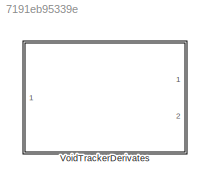
MODEL slx_7191eb95339e
KIND library
CONFIG AbsTol = auto
CONFIG EnableMultiTasking = off
CONFIG FixedStep = auto
CONFIG MaxStep = auto
CONFIG MinStep = auto
CONFIG RelTol = 1e-3
CONFIG SampleTimeConstraint = Unconstrained
CONFIG SolverName = VariableStepAuto
CONFIG StartTime = 0.0
CONFIG StopTime = 10.0
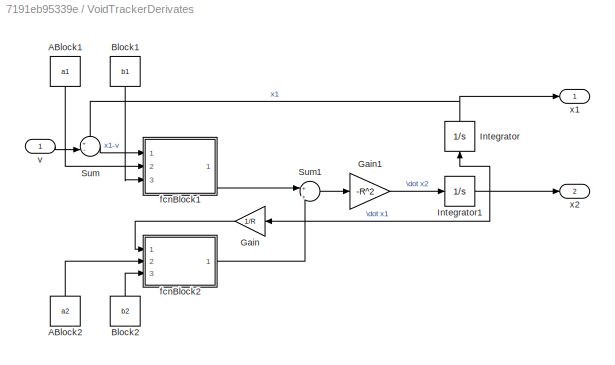
BLOCK [SubSystem] VoidTrackerDerivates
  Ports = [1, 2]
  RequestExecContextInheritance = off
BLOCK [Constant] VoidTrackerDerivates/ABlock1
  NameLocation = left
  Value = a1
BLOCK [Constant] VoidTrackerDerivates/ABlock2
  NameLocation = right
  Value = a2
BLOCK [Constant] VoidTrackerDerivates/Block1
  NameLocation = left
  Value = b1
BLOCK [Constant] VoidTrackerDerivates/Block2
  NameLocation = right
  Value = b2
BLOCK [Gain] VoidTrackerDerivates/Gain
  Gain = 1/R
  NameLocation = top
BLOCK [Gain] VoidTrackerDerivates/Gain1
  Gain = -R^2
BLOCK [Integrator] VoidTrackerDerivates/Integrator
  NameLocation = right
  Ports = [1, 1]
BLOCK [Integrator] VoidTrackerDerivates/Integrator1
  Ports = [1, 1]
BLOCK [Sum] VoidTrackerDerivates/Sum
  Inputs = +-|
  NameLocation = top
  Ports = [2, 1]
BLOCK [Sum] VoidTrackerDerivates/Sum1
  Inputs = +|+
  Ports = [2, 1]
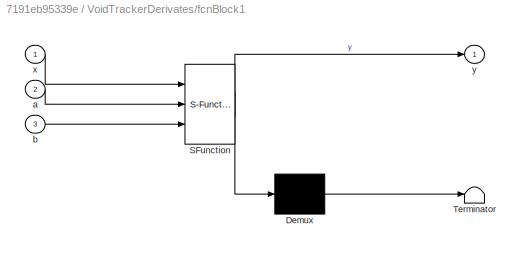
BLOCK [SubSystem] VoidTrackerDerivates/fcnBlock1
  ErrorFcn = Stateflow.Translate.translate
  PermitHierarchicalResolution = ExplicitOnly
  Ports = [3, 1]
  RequestExecContextInheritance = off
  SFBlockType = MATLAB Function
  TreatAsAtomicUnit = on
BLOCK [Demux] VoidTrackerDerivates/fcnBlock1/ Demux 
  Outputs = 1
  Ports = [1, 1]
BLOCK [S-Function] VoidTrackerDerivates/fcnBlock1/ SFunction 
  EnableBusSupport = on
  FunctionName = sf_sfun
  PortCounts = [3 2]
  Ports = [3, 2]
  SFcnIsStateOwnerBlock = off
  SFunctionDeploymentMode = off
  Tag = Stateflow S-Function 2
BLOCK [Terminator] VoidTrackerDerivates/fcnBlock1/ Terminator 
BLOCK [Inport] VoidTrackerDerivates/fcnBlock1/a
  Port = 2
BLOCK [Inport] VoidTrackerDerivates/fcnBlock1/b
  Port = 3
BLOCK [Inport] VoidTrackerDerivates/fcnBlock1/x
BLOCK [Outport] VoidTrackerDerivates/fcnBlock1/y
  VectorParamsAs1DForOutWhenUnconnected = off
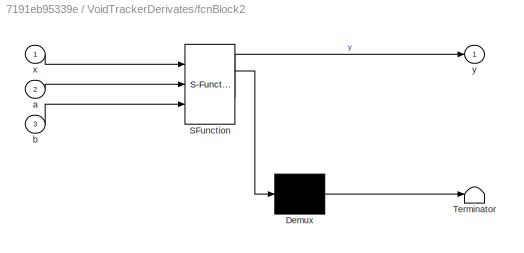
BLOCK [SubSystem] VoidTrackerDerivates/fcnBlock2
  ErrorFcn = Stateflow.Translate.translate
  PermitHierarchicalResolution = ExplicitOnly
  Ports = [3, 1]
  RequestExecContextInheritance = off
  SFBlockType = MATLAB Function
  TreatAsAtomicUnit = on
BLOCK [Demux] VoidTrackerDerivates/fcnBlock2/ Demux 
  Outputs = 1
  Ports = [1, 1]
BLOCK [S-Function] VoidTrackerDerivates/fcnBlock2/ SFunction 
  EnableBusSupport = on
  FunctionName = sf_sfun
  PortCounts = [3 2]
  Ports = [3, 2]
  SFcnIsStateOwnerBlock = off
  SFunctionDeploymentMode = off
  Tag = Stateflow S-Function 1
BLOCK [Terminator] VoidTrackerDerivates/fcnBlock2/ Terminator 
BLOCK [Inport] VoidTrackerDerivates/fcnBlock2/a
  Port = 2
BLOCK [Inport] VoidTrackerDerivates/fcnBlock2/b
  Port = 3
BLOCK [Inport] VoidTrackerDerivates/fcnBlock2/x
BLOCK [Outport] VoidTrackerDerivates/fcnBlock2/y
  VectorParamsAs1DForOutWhenUnconnected = off
BLOCK [Inport] VoidTrackerDerivates/v
BLOCK [Outport] VoidTrackerDerivates/x1
  VectorParamsAs1DForOutWhenUnconnected = off
BLOCK [Outport] VoidTrackerDerivates/x2
  Port = 2
  VectorParamsAs1DForOutWhenUnconnected = off
LINE VoidTrackerDerivates/ABlock1:1 -> VoidTrackerDerivates/fcnBlock1:2
LINE VoidTrackerDerivates/ABlock2:1 -> VoidTrackerDerivates/fcnBlock2:2
LINE VoidTrackerDerivates/Block1:1 -> VoidTrackerDerivates/fcnBlock1:3
LINE VoidTrackerDerivates/Block2:1 -> VoidTrackerDerivates/fcnBlock2:3
LINE VoidTrackerDerivates/Gain1:1 -> VoidTrackerDerivates/Integrator1:1
LINE VoidTrackerDerivates/Gain:1 -> VoidTrackerDerivates/fcnBlock2:1
NET VoidTrackerDerivates/Integrator1:1 -> VoidTrackerDerivates/Gain:1, VoidTrackerDerivates/Integrator:1, VoidTrackerDerivates/x2:1
NET VoidTrackerDerivates/Integrator:1 -> VoidTrackerDerivates/Sum:1, VoidTrackerDerivates/x1:1
LINE VoidTrackerDerivates/Sum1:1 -> VoidTrackerDerivates/Gain1:1
LINE VoidTrackerDerivates/Sum:1 -> VoidTrackerDerivates/fcnBlock1:1
LINE VoidTrackerDerivates/fcnBlock1:1 -> VoidTrackerDerivates/Sum1:1
LINE VoidTrackerDerivates/fcnBlock2:1 -> VoidTrackerDerivates/Sum1:2
LINE VoidTrackerDerivates/v:1 -> VoidTrackerDerivates/Sum:2
note: NET lines group one-source signal fan-out (src -> all destinations, sorted); 1:1 wires keep LINE
CHART VoidTrackerDerivates/fcnBlock2 states=1 transitions=1
  STATE_LABEL 'eML_blk_kernel()'
  STATE_LABEL 'SCRIPT:\nfunction y = fcn(x, a, b)\ny=1;\n\n'
CHART VoidTrackerDerivates/fcnBlock1 states=1 transitions=1
  STATE_LABEL 'eML_blk_kernel()'
  STATE_LABEL 'SCRIPT:\nfunction y = fcn(x, a, b) \ny = 1;'
CHART  states=0 transitions=0
CHART  states=0 transitions=0
